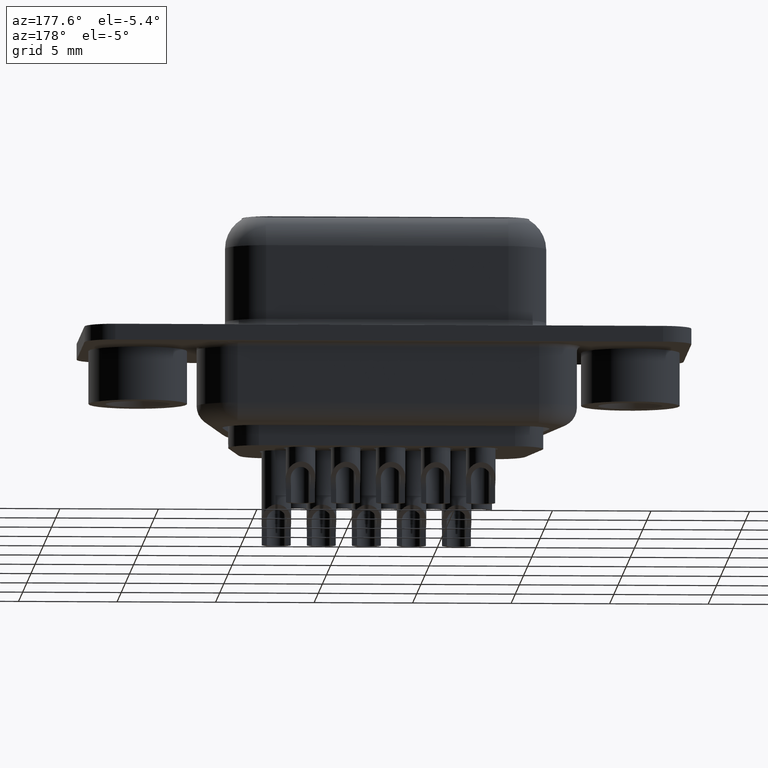
[diagram: clean part render]
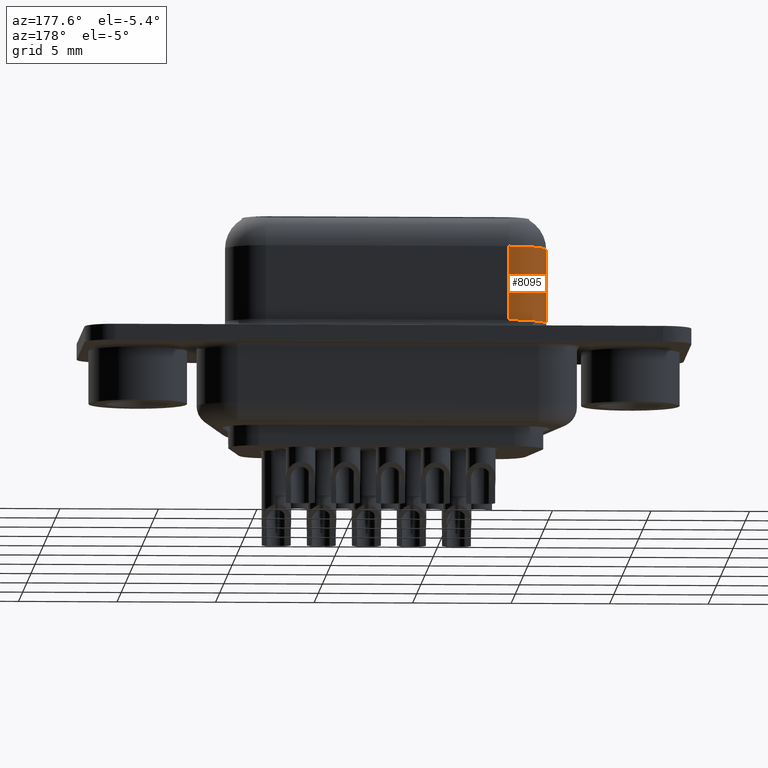
[diagram: same view with one face highlighted and labeled with its STEP entity id]
A machine part, auxiliary view. The second image highlights one B-rep face of the part: STEP entity #8095.
In plain terms, the highlighted cylindrical surface (partial cylindrical patch) has radius 2 mm, axis along (-0, -0, -1).
Its self-contained STEP definition (entity closure, byte-faithful):
#1203 = CIRCLE ( 'NONE', #12450, 2.000000000000000888 ) ;
#1401 = DIRECTION ( 'NONE',  ( 1.000000000000000000, 0.0000000000000000000, 0.0000000000000000000 ) ) ;
#1979 = VERTEX_POINT ( 'NONE', #18273 ) ;
#2732 = VERTEX_POINT ( 'NONE', #3515 ) ;
#3355 = CYLINDRICAL_SURFACE ( 'NONE', #16867, 2.000000000000000888 ) ;
#3515 = CARTESIAN_POINT ( 'NONE',  ( 6.350000000000005862, 3.949999999999997069, 0.8999999999999998002 ) ) ;
#4022 = EDGE_CURVE ( 'NONE', #16107, #2732, #7626, .T. ) ;
#4183 = ORIENTED_EDGE ( 'NONE', *, *, #16287, .F. ) ;
#4376 = CARTESIAN_POINT ( 'NONE',  ( 4.350000000000004974, 1.949999999999996847, 0.8999999999999998002 ) ) ;
#4562 = VERTEX_POINT ( 'NONE', #4376 ) ;
#5512 = ORIENTED_EDGE ( 'NONE', *, *, #8528, .T. ) ;
#6672 = DIRECTION ( 'NONE',  ( -1.000000000000000000, 0.0000000000000000000, 0.0000000000000000000 ) ) ;
#6775 = EDGE_CURVE ( 'NONE', #2732, #4562, #18121, .T. ) ;
#6834 = CARTESIAN_POINT ( 'NONE',  ( 6.350000000000005862, 3.949999999999997069, 4.650000000000000355 ) ) ;
#7626 = LINE ( 'NONE', #16350, #12771 ) ;
#7980 = ORIENTED_EDGE ( 'NONE', *, *, #6775, .T. ) ;
#8095 = ADVANCED_FACE ( 'NONE', ( #16973 ), #3355, .T. ) ;
#8149 = DIRECTION ( 'NONE',  ( -0.0000000000000000000, -0.0000000000000000000, -1.000000000000000000 ) ) ;
#8528 = EDGE_CURVE ( 'NONE', #1979, #16107, #1203, .T. ) ;
#8597 = DIRECTION ( 'NONE',  ( -0.0000000000000000000, -0.0000000000000000000, -1.000000000000000000 ) ) ;
#8821 = CARTESIAN_POINT ( 'NONE',  ( 6.350000000000005862, 1.949999999999996847, 0.8999999999999998002 ) ) ;
#9975 = AXIS2_PLACEMENT_3D ( 'NONE', #8821, #14815, #1401 ) ;
#10772 = DIRECTION ( 'NONE',  ( -0.0000000000000000000, -0.0000000000000000000, -1.000000000000000000 ) ) ;
#10789 = ORIENTED_EDGE ( 'NONE', *, *, #4022, .T. ) ;
#10831 = EDGE_LOOP ( 'NONE', ( #4183, #5512, #10789, #7980 ) ) ;
#12130 = DIRECTION ( 'NONE',  ( -0.0000000000000000000, -0.0000000000000000000, -1.000000000000000000 ) ) ;
#12274 = VECTOR ( 'NONE', #8597, 1000.000000000000000 ) ;
#12443 = CARTESIAN_POINT ( 'NONE',  ( 6.350000000000005862, 1.949999999999996847, 4.650000000000000355 ) ) ;
#12450 = AXIS2_PLACEMENT_3D ( 'NONE', #12443, #10772, #15187 ) ;
#12771 = VECTOR ( 'NONE', #12130, 1000.000000000000000 ) ;
#14815 = DIRECTION ( 'NONE',  ( 0.0000000000000000000, 0.0000000000000000000, 1.000000000000000000 ) ) ;
#15187 = DIRECTION ( 'NONE',  ( -1.000000000000000000, 0.0000000000000000000, 0.0000000000000000000 ) ) ;
#16052 = LINE ( 'NONE', #16339, #12274 ) ;
#16107 = VERTEX_POINT ( 'NONE', #6834 ) ;
#16287 = EDGE_CURVE ( 'NONE', #1979, #4562, #16052, .T. ) ;
#16339 = CARTESIAN_POINT ( 'NONE',  ( 4.350000000000004974, 1.949999999999996847, 6.400000000000000355 ) ) ;
#16350 = CARTESIAN_POINT ( 'NONE',  ( 6.350000000000005862, 3.949999999999997069, 6.400000000000000355 ) ) ;
#16867 = AXIS2_PLACEMENT_3D ( 'NONE', #18253, #8149, #6672 ) ;
#16973 = FACE_OUTER_BOUND ( 'NONE', #10831, .T. ) ;
#18121 = CIRCLE ( 'NONE', #9975, 2.000000000000000888 ) ;
#18253 = CARTESIAN_POINT ( 'NONE',  ( 6.350000000000005862, 1.949999999999996847, 6.400000000000000355 ) ) ;
#18273 = CARTESIAN_POINT ( 'NONE',  ( 4.350000000000004974, 1.949999999999996847, 4.650000000000000355 ) ) ;